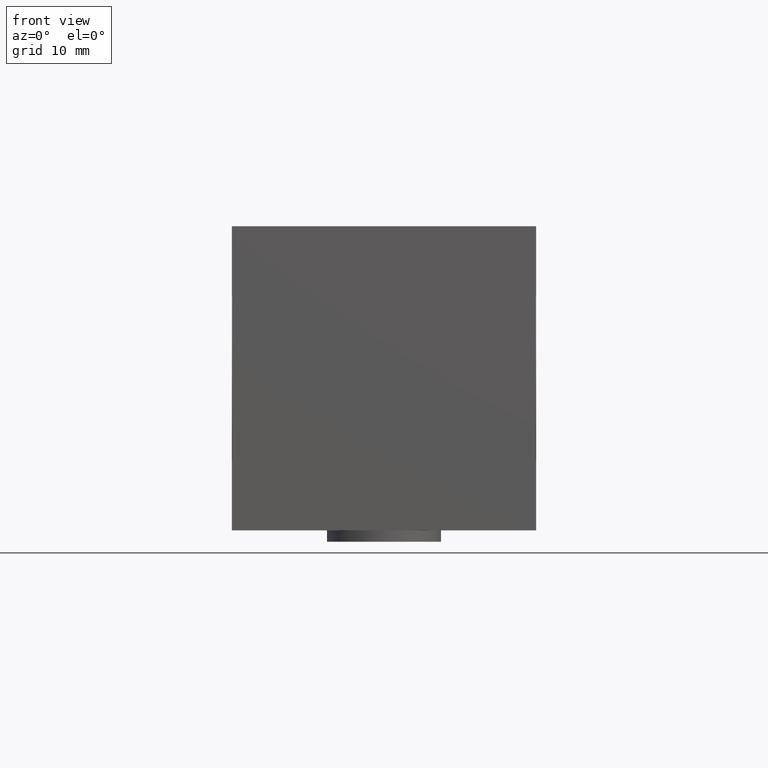
[diagram: clean part render]
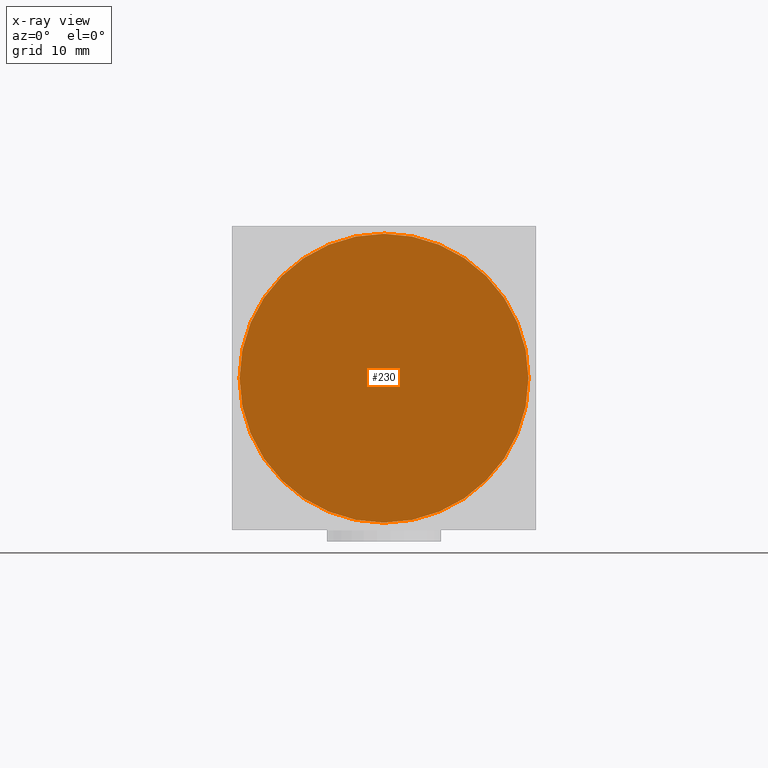
[diagram: x-ray — body ghosted, one internal face saturated and labeled with its STEP entity id]
A machine part, front view, then the same camera in x-ray: the body is ghosted and one INTERNAL B-rep face — a face not visible from any outside direction — is saturated and labeled: STEP entity #230.
In plain terms, the highlighted planar face has unit normal (0, 1, 0).
Its self-contained STEP definition (entity closure, byte-faithful):
#230 = ADVANCED_FACE( '', ( #535 ), #536, .F. );
#535 = FACE_OUTER_BOUND( '', #980, .T. );
#536 = PLANE( '', #981 );
#980 = EDGE_LOOP( '', ( #1452 ) );
#981 = AXIS2_PLACEMENT_3D( '', #1453, #1454, #1455 );
#1452 = ORIENTED_EDGE( '', *, *, #2460, .F. );
#1453 = CARTESIAN_POINT( '', ( 0.000000000000000, 0.000000000000000, 0.000000000000000 ) );
#1454 = DIRECTION( '', ( 1.00000000000000, 0.000000000000000, -0.000000000000000 ) );
#1455 = DIRECTION( '', ( -0.000000000000000, 0.000000000000000, -1.00000000000000 ) );
#2460 = EDGE_CURVE( '', #2882, #2882, #2883, .T. );
#2882 = VERTEX_POINT( '', #3477 );
#2883 = CIRCLE( '', #3478, 19.0000000000000 );
#3477 = CARTESIAN_POINT( '', ( 0.000000000000000, 0.000000000000000, -19.0000000000000 ) );
#3478 = AXIS2_PLACEMENT_3D( '', #4187, #4188, #4189 );
#4187 = CARTESIAN_POINT( '', ( 0.000000000000000, 0.000000000000000, 0.000000000000000 ) );
#4188 = DIRECTION( '', ( 1.00000000000000, 0.000000000000000, -0.000000000000000 ) );
#4189 = DIRECTION( '', ( -0.000000000000000, 0.000000000000000, -1.00000000000000 ) );